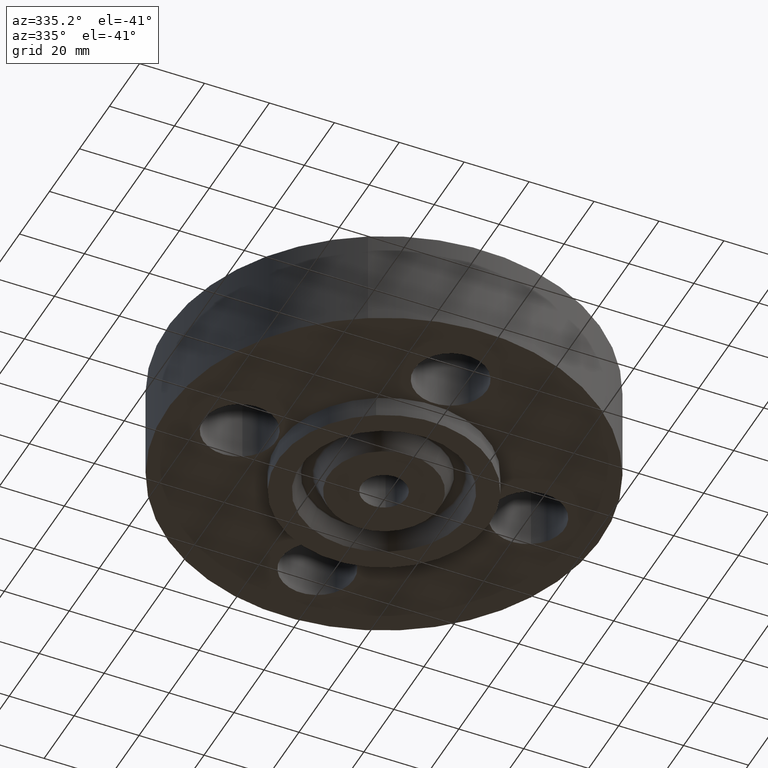
[diagram: clean part render]
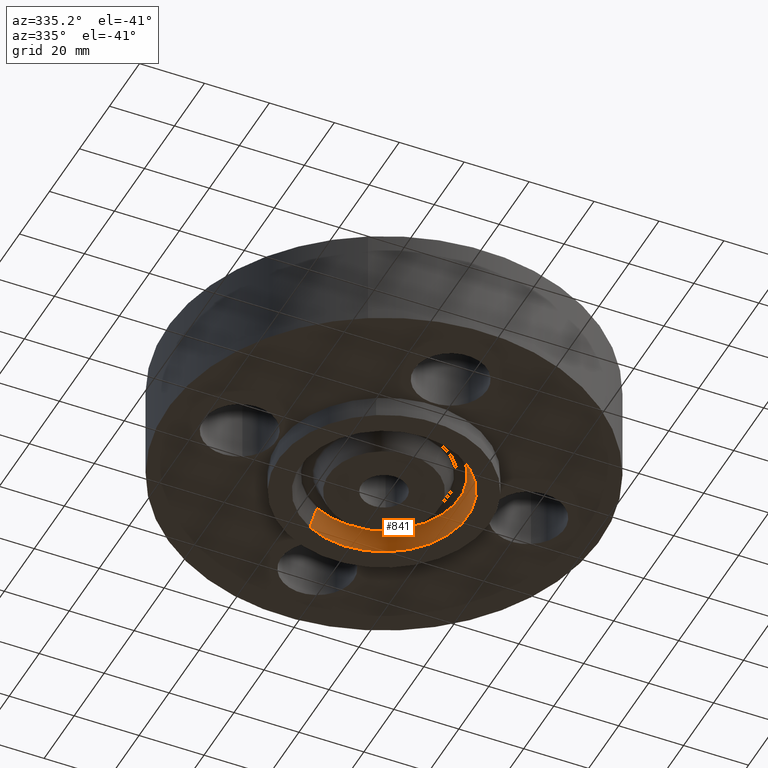
[diagram: same view with one face highlighted and labeled with its STEP entity id]
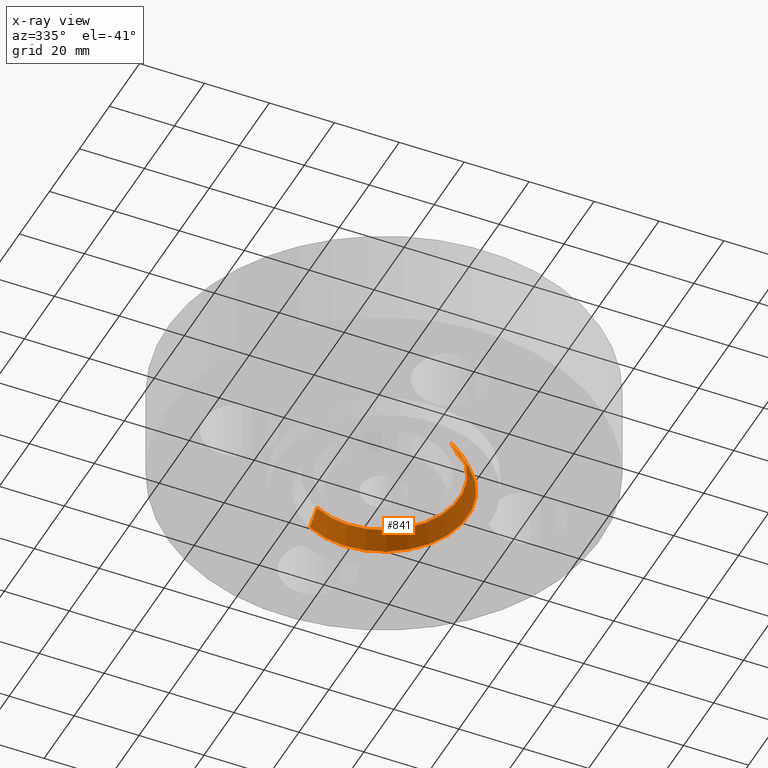
[diagram: x-ray of the same camera — body ghosted, the highlighted face saturated]
A machine part, auxiliary view. The second image highlights one B-rep face of the part: STEP entity #841.
The next image is the same camera in x-ray: the body ghosted, the highlighted face saturated — about 0% of this face is hidden behind the body in this view.
In plain terms, the highlighted conical surface has half-angle 23 deg.
Its self-contained STEP definition (entity closure, byte-faithful):
#702=AXIS2_PLACEMENT_3D('Circle Axis2P3D',#700,#701,$) ;
#776=AXIS2_PLACEMENT_3D('Cone Axis2P3D',#773,#774,#775) ;
#797=AXIS2_PLACEMENT_3D('Circle Axis2P3D',#795,#796,$) ;
#695=CARTESIAN_POINT('Vertex',(0.487096347224,-0.891623882884,-0.250000000001)) ;
#697=CARTESIAN_POINT('Vertex',(-0.487096347224,0.891623882884,-0.250000000001)) ;
#700=CARTESIAN_POINT('Axis2P3D Location',(-3.49676543189E-017,6.99353086378E-017,-0.250000000001)) ;
#742=CARTESIAN_POINT('Vertex',(-0.440063979875,0.80553171193,-0.0188873350169)) ;
#744=CARTESIAN_POINT('Vertex',(0.440063979875,-0.80553171193,-0.0188873350169)) ;
#773=CARTESIAN_POINT('Axis2P3D Location',(0.,0.,-0.0188873350169)) ;
#778=CARTESIAN_POINT('Line Origine',(-0.46358016355,0.848577797407,-0.134443667509)) ;
#783=CARTESIAN_POINT('Line Origine',(0.46358016355,-0.848577797407,-0.134443667509)) ;
#795=CARTESIAN_POINT('Axis2P3D Location',(0.,0.,-0.0188873350169)) ;
#701=DIRECTION('Axis2P3D Direction',(0.,0.,-0.0393700787402)) ;
#774=DIRECTION('Axis2P3D Direction',(-0.,-0.,-0.0393700787402)) ;
#775=DIRECTION('Axis2P3D XDirection',(-0.0188750212049,0.0345504945626,0.)) ;
#779=DIRECTION('Vector Direction',(-0.00737505833565,0.0134999537303,-0.0362403485611)) ;
#784=DIRECTION('Vector Direction',(0.00737505833565,-0.0134999537303,-0.0362403485611)) ;
#796=DIRECTION('Axis2P3D Direction',(0.,0.,0.0393700787402)) ;
#780=VECTOR('Line Direction',#779,0.0393700787402) ;
#785=VECTOR('Line Direction',#784,0.0393700787402) ;
#836=ORIENTED_EDGE('',*,*,#704,.T.) ;
#837=ORIENTED_EDGE('',*,*,#787,.T.) ;
#838=ORIENTED_EDGE('',*,*,#799,.T.) ;
#839=ORIENTED_EDGE('',*,*,#782,.F.) ;
#841=ADVANCED_FACE('PartBody',(#840),#777,.F.) ;
#703=CIRCLE('generated circle',#702,1.016) ;
#798=CIRCLE('generated circle',#797,0.917898494011) ;
#777=CONICAL_SURFACE('Cone',#776,0.917898494011,0.401425727959) ;
#704=EDGE_CURVE('',#698,#696,#703,.T.) ;
#782=EDGE_CURVE('',#698,#743,#781,.F.) ;
#787=EDGE_CURVE('',#696,#745,#786,.F.) ;
#799=EDGE_CURVE('',#745,#743,#798,.T.) ;
#835=EDGE_LOOP('',(#836,#837,#838,#839)) ;
#840=FACE_OUTER_BOUND('',#835,.T.) ;
#781=LINE('Line',#778,#780) ;
#786=LINE('Line',#783,#785) ;
#696=VERTEX_POINT('',#695) ;
#698=VERTEX_POINT('',#697) ;
#743=VERTEX_POINT('',#742) ;
#745=VERTEX_POINT('',#744) ;